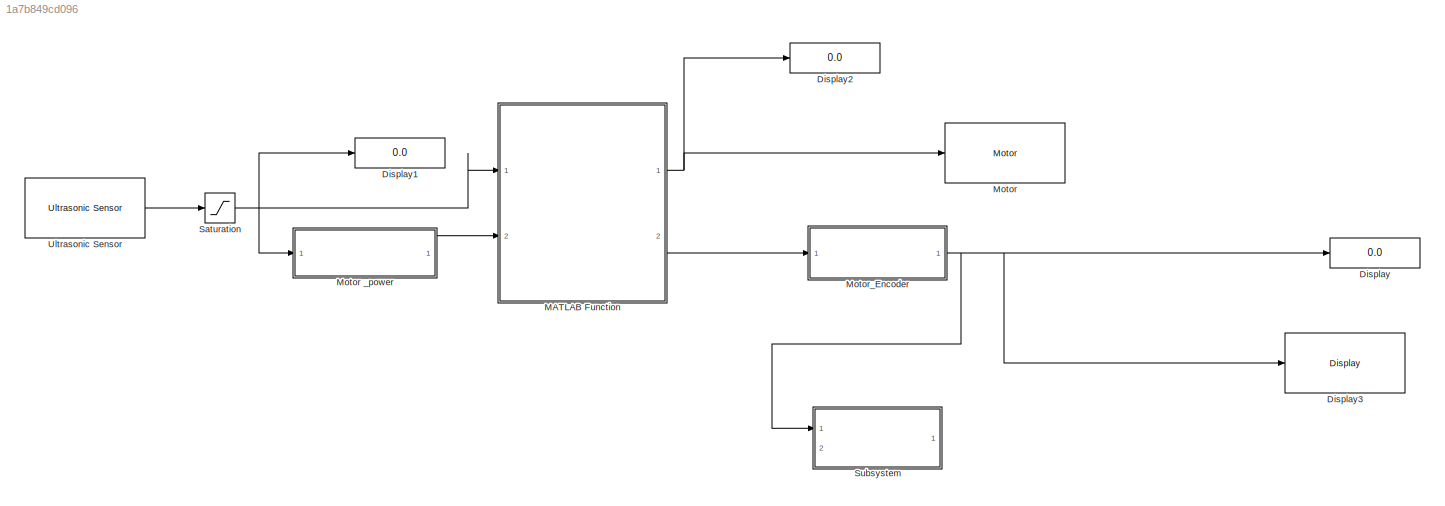
MODEL slx_1a7b849cd096
KIND model
CONFIG AbsTol = auto
CONFIG FixedStep = auto
CONFIG MaxStep = auto
CONFIG MinStep = auto
CONFIG RelTol = 1e-3
CONFIG SampleTimeConstraint = Unconstrained
CONFIG Solver = FixedStepAuto
CONFIG SolverMode = Auto
CONFIG SolverName = FixedStepAuto
CONFIG StartTime = 0.0
CONFIG StopTime = inf
WORKSPACE source: MAT-file member
WORKSPACE ratio = 0.1
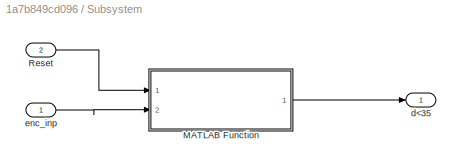
BLOCK [SubSystem]  Subsystem
  Ports = [2, 1]
  RequestExecContextInheritance = off
  TreatAsAtomicUnit = on
  Variant = off
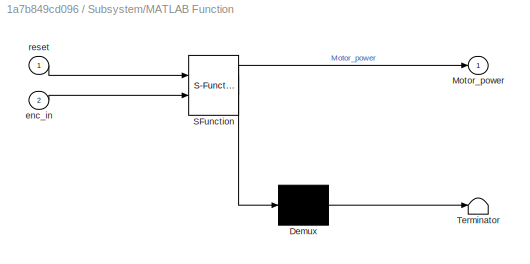
BLOCK [SubSystem]  Subsystem/MATLAB Function
  ErrorFcn = Stateflow.Translate.translate
  PermitHierarchicalResolution = ParametersOnly
  Ports = [2, 1]
  RequestExecContextInheritance = off
  SFBlockType = MATLAB Function
  TreatAsAtomicUnit = on
  Variant = off
BLOCK [Demux]  Subsystem/MATLAB Function/ Demux 
  Outputs = 1
  Ports = [1, 1]
BLOCK [S-Function]  Subsystem/MATLAB Function/ SFunction 
  EnableBusSupport = on
  FunctionName = sf_sfun
  PortCounts = [2 2]
  Ports = [2, 2]
  SFunctionDeploymentMode = off
  Tag = Stateflow S-Function testbench_cp_fwd 1
BLOCK [Terminator]  Subsystem/MATLAB Function/ Terminator 
BLOCK [Outport]  Subsystem/MATLAB Function/Motor_power
  IconDisplay = Port number
BLOCK [Inport]  Subsystem/MATLAB Function/enc_in
  IconDisplay = Port number
  Port = 2
BLOCK [Inport]  Subsystem/MATLAB Function/reset
  IconDisplay = Port number
BLOCK [Inport]  Subsystem/Reset 
  IconDisplay = Port number
  Port = 2
BLOCK [Outport]  Subsystem/d<35
  IconDisplay = Port number
BLOCK [Inport]  Subsystem/enc_inp
  IconDisplay = Port number
BLOCK [Display] Display
  Decimation = 1
  Ports = [1]
BLOCK [Display] Display1
  Decimation = 1
  Ports = [1]
BLOCK [Display] Display2
  Decimation = 1
  Ports = [1]
BLOCK [Reference] Display3  REF=legoev3lib/Display
  Ports = [1]
  SourceBlock = legoev3lib/Display
  SourceType = LEGO MINDSTORMS EV3 Display
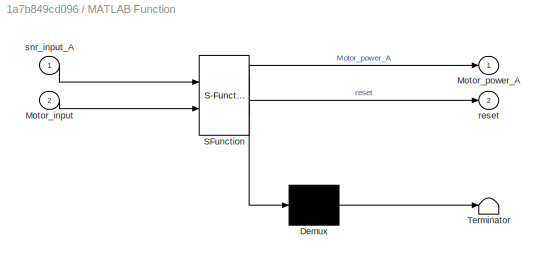
BLOCK [SubSystem] MATLAB Function
  ErrorFcn = Stateflow.Translate.translate
  PermitHierarchicalResolution = ParametersOnly
  Ports = [2, 2]
  RequestExecContextInheritance = off
  SFBlockType = MATLAB Function
  TreatAsAtomicUnit = on
  Variant = off
BLOCK [Demux] MATLAB Function/ Demux 
  Outputs = 1
  Ports = [1, 1]
BLOCK [S-Function] MATLAB Function/ SFunction 
  EnableBusSupport = on
  FunctionName = sf_sfun
  PortCounts = [2 3]
  Ports = [2, 3]
  SFunctionDeploymentMode = off
  Tag = Stateflow S-Function testbench_cp_fwd 2
BLOCK [Terminator] MATLAB Function/ Terminator 
BLOCK [Inport] MATLAB Function/Motor_input
  IconDisplay = Port number
  Port = 2
BLOCK [Outport] MATLAB Function/Motor_power_A
  IconDisplay = Port number
BLOCK [Outport] MATLAB Function/reset
  IconDisplay = Port number
  Port = 2
BLOCK [Inport] MATLAB Function/snr_input_A
  IconDisplay = Port number
BLOCK [Reference] Motor  REF=legoev3lib/Motor
  Ports = [1]
  SourceBlock = legoev3lib/Motor
  SourceType = LEGO MINDSTORMS EV3 Motor
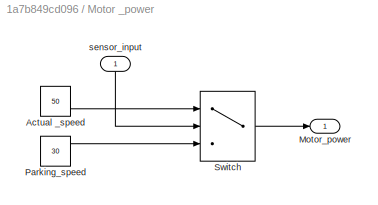
BLOCK [SubSystem] Motor _power
  Ports = [1, 1]
  RequestExecContextInheritance = off
  Variant = off
BLOCK [Constant] Motor _power/Actual _speed
  Value = 50
BLOCK [Outport] Motor _power/Motor_power 
  IconDisplay = Port number
BLOCK [Constant] Motor _power/Parking_speed
  Value = 30
BLOCK [Switch] Motor _power/Switch
  Criteria = u2 > Threshold
  InputSameDT = off
  SaturateOnIntegerOverflow = off
  Threshold = 30
BLOCK [Inport] Motor _power/sensor_input
  IconDisplay = Port number
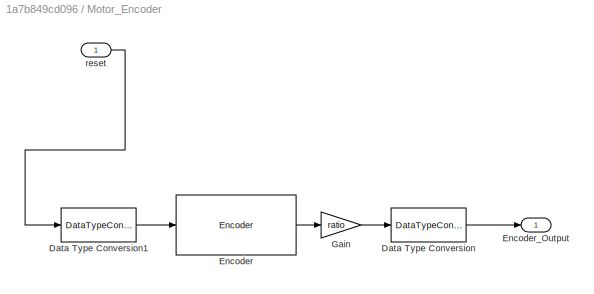
BLOCK [SubSystem] Motor_Encoder
  Ports = [1, 1]
  RequestExecContextInheritance = off
  Variant = off
BLOCK [DataTypeConversion] Motor_Encoder/Data Type Conversion
  OutDataTypeStr = int16
  RndMeth = Round
  SaturateOnIntegerOverflow = off
BLOCK [DataTypeConversion] Motor_Encoder/Data Type Conversion1
  OutDataTypeStr = int8
  RndMeth = Round
  SaturateOnIntegerOverflow = off
BLOCK [Reference] Motor_Encoder/Encoder  REF=legoev3lib/Encoder
  Ports = [1, 1]
  SourceBlock = legoev3lib/Encoder
  SourceType = LEGO MINDSTORMS EV3 Encoder
BLOCK [Outport] Motor_Encoder/Encoder_Output
  IconDisplay = Port number
BLOCK [Gain] Motor_Encoder/Gain
  Gain = ratio
  OutDataTypeStr = Inherit: Inherit via internal rule
  ParamDataTypeStr = Inherit: Inherit via internal rule
  SaturateOnIntegerOverflow = off
BLOCK [Inport] Motor_Encoder/reset
  IconDisplay = Port number
BLOCK [Saturate] Saturation
  InputPortMap = u0
  LowerLimit = 3
  Ports = [1, 1]
  UpperLimit = 100
BLOCK [Reference] Ultrasonic Sensor  REF=legoev3lib/Ultrasonic Sensor
  Ports = [0, 1]
  SourceBlock = legoev3lib/Ultrasonic Sensor
  SourceType = LEGO MINDSTORMS EV3 Ultrasonic Sensor
LINE  Subsystem/MATLAB Function:1 ->  Subsystem/d<35:1
LINE  Subsystem/Reset :1 ->  Subsystem/MATLAB Function:1
LINE  Subsystem/enc_inp:1 ->  Subsystem/MATLAB Function:2
NET MATLAB Function:1 -> Display2:1, Motor:1
LINE MATLAB Function:2 -> Motor_Encoder:1
LINE Motor _power/Actual _speed:1 -> Motor _power/Switch:1
LINE Motor _power/Parking_speed:1 -> Motor _power/Switch:3
LINE Motor _power/Switch:1 -> Motor _power/Motor_power :1
LINE Motor _power/sensor_input:1 -> Motor _power/Switch:2
LINE Motor _power:1 -> MATLAB Function:2
LINE Motor_Encoder/Data Type Conversion1:1 -> Motor_Encoder/Encoder:1
LINE Motor_Encoder/Data Type Conversion:1 -> Motor_Encoder/Encoder_Output:1
LINE Motor_Encoder/Encoder:1 -> Motor_Encoder/Gain:1
LINE Motor_Encoder/Gain:1 -> Motor_Encoder/Data Type Conversion:1
LINE Motor_Encoder/reset:1 -> Motor_Encoder/Data Type Conversion1:1
NET Motor_Encoder:1 ->  Subsystem:1, Display3:1, Display:1
NET Saturation:1 -> Display1:1, MATLAB Function:1, Motor _power:1
LINE Ultrasonic Sensor:1 -> Saturation:1
note: NET lines group one-source signal fan-out (src -> all destinations, sorted); 1:1 wires keep LINE
CHART 
Subsystem/MATLAB Function states=1 transitions=1
  STATE_LABEL 'eML_blk_kernel()'
  STATE_LABEL 'SCRIPT:\nfunction Motor_power = fcn(reset,enc_in)\n%#codegen\nif(reset==1)\n    if(enc_in>=25)&&(enc_in<=35)\n       Motor_power=0;\n    else\n       Motor_power= -50;\n    end\nelse\n    Motor_power=0;\nend\nend'
CHART MATLAB Function states=1 transitions=1
  STATE_LABEL 'eML_blk_kernel()'
  STATE_LABEL 'SCRIPT:\nfunction [Motor_power_A,reset] = fcn(snr_input_A,Motor_input)\n%#codegen\nif(snr_input_A<=20)\n    reset=1;\n    Motor_power_A=Motor_input;\nelse\n    Motor_power_A=Motor_input;\n    reset=0;\nend\nend\n\n'
